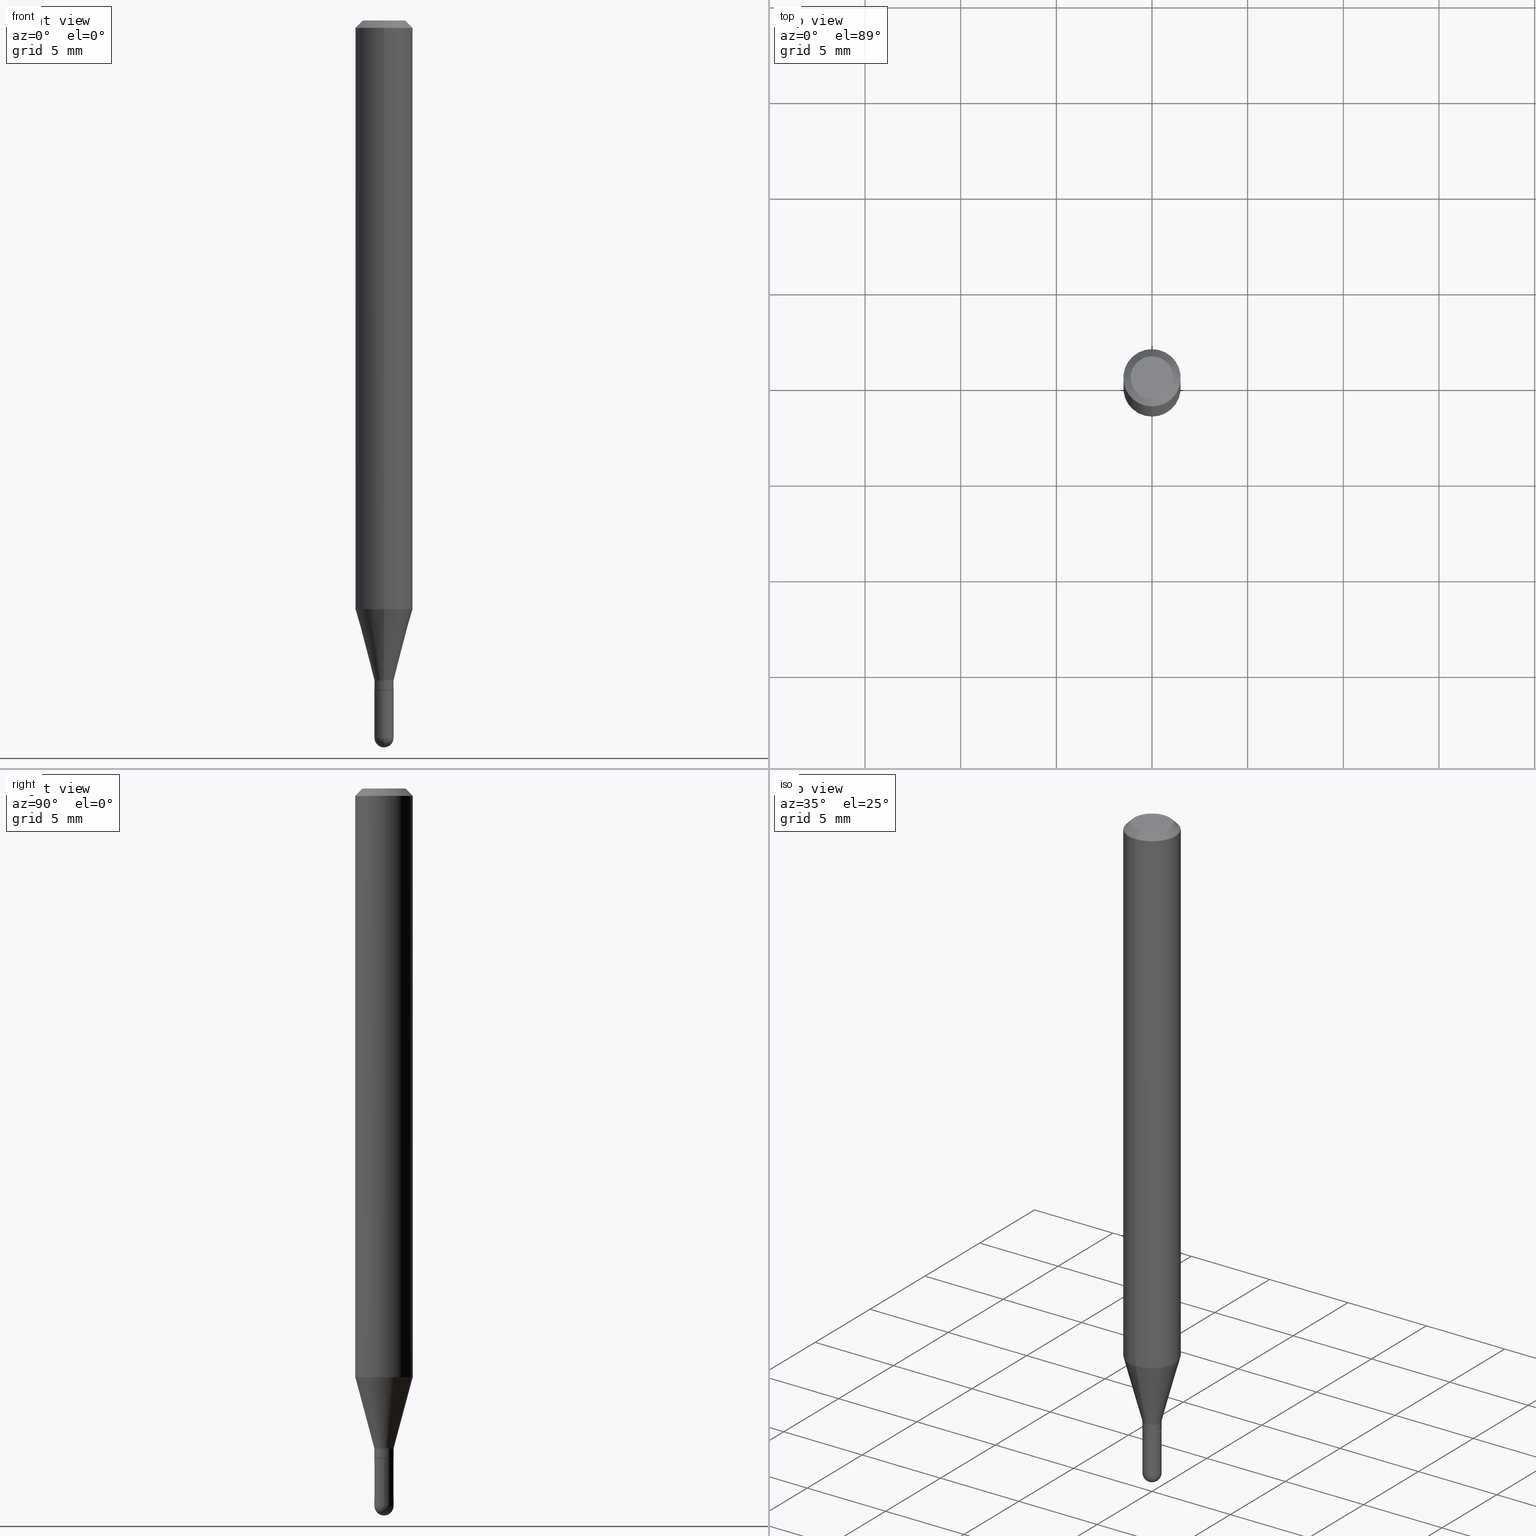
[diagram: canonical four-view strip — front | top / right | iso, engineering-drawing reading convention]
A machine part, canonical four-view strip (front | top / right | iso — engineering-drawing reading convention). The complete STEP part file that produces these views, byte-faithful:
ISO-10303-21;
HEADER;
FILE_DESCRIPTION (( 'STEP AP203' ),
    '1' );
FILE_NAME ('02839.STEP',
    '2024-03-07T21:39:39',
    ( '' ),
    ( '' ),
    'SwSTEP 2.0',
    'SolidWorks 2023',
    '' );
FILE_SCHEMA (( 'CONFIG_CONTROL_DESIGN' ));
ENDSEC;

DATA;
#1 = DIRECTION ( 'NONE',  ( -2.446456800980005402E-29, 3.490066474063722068E-15, 1.000000000000000000 ) ) ;
#2 = ORIENTED_EDGE ( 'NONE', *, *, #327, .T. ) ;
#3 = LINE ( 'NONE', #128, #344 ) ;
#4 = CIRCLE ( 'NONE', #167, 0.01969999999999979406 ) ;
#5 = LOCAL_TIME ( 16, 39, 39.00000000000000000, #69 ) ;
#6 = ORIENTED_EDGE ( 'NONE', *, *, #108, .F. ) ;
#7 = SHAPE_DEFINITION_REPRESENTATION ( #46, #268 ) ;
#8 = APPROVAL ( #230, 'UNSPECIFIED' ) ;
#9 = ADVANCED_FACE ( 'NONE', ( #389 ), #362, .T. ) ;
#10 = DIRECTION ( 'NONE',  ( -2.446456800980005682E-29, 3.490066474063722068E-15, 1.000000000000000000 ) ) ;
#11 = DIRECTION ( 'NONE',  ( -6.982962677686265922E-15, -1.000000000000000000, 3.490066474063722068E-15 ) ) ;
#12 = ADVANCED_FACE ( 'NONE', ( #479 ), #342, .T. ) ;
#13 = CARTESIAN_POINT ( 'NONE',  ( 4.195754854663688780E-16, 0.05904999999999994975, -0.01500000000000055109 ) ) ;
#14 = EDGE_CURVE ( 'NONE', #244, #78, #31, .T. ) ;
#15 = AXIS2_PLACEMENT_3D ( 'NONE', #64, #504, #148 ) ;
#16 = CARTESIAN_POINT ( 'NONE',  ( -4.123439461173739834E-16, -0.05904999999999999832, 2.060884252934627892E-16 ) ) ;
#17 = DIRECTION ( 'NONE',  ( 2.438088387897960049E-29, -3.491481338843145188E-15, -1.000000000000000000 ) ) ;
#18 = EDGE_CURVE ( 'NONE', #305, #244, #330, .T. ) ;
#19 = DIRECTION ( 'NONE',  ( 1.000000000000000000, -6.982962677686275388E-15, 0.000000000000000000 ) ) ;
#20 = CARTESIAN_POINT ( 'NONE',  ( 3.322532981410944760E-29, -4.739859278425939887E-15, -1.358099999999999863 ) ) ;
#21 = CIRCLE ( 'NONE', #37, 0.01969999999999987039 ) ;
#22 = DIMENSIONAL_EXPONENTS ( 1.000000000000000000, 0.000000000000000000, 0.000000000000000000, 0.000000000000000000, 0.000000000000000000, 0.000000000000000000, 0.000000000000000000 ) ;
#23 = CARTESIAN_POINT ( 'NONE',  ( 3.371217471750447444E-29, -4.809311601259809045E-15, -1.377999999999999892 ) ) ;
#24 = APPLICATION_PROTOCOL_DEFINITION ( 'international standard', 'config_control_design', 1994, #270 ) ;
#25 = FACE_OUTER_BOUND ( 'NONE', #392, .T. ) ;
#26 = AXIS2_PLACEMENT_3D ( 'NONE', #510, #314, #475 ) ;
#27 = SECURITY_CLASSIFICATION_LEVEL ( 'unclassified' ) ;
#28 = SPHERICAL_SURFACE ( 'NONE', #255, 0.01970000000000002999 ) ;
#29 = ORIENTED_EDGE ( 'NONE', *, *, #58, .T. ) ;
#30 = APPROVAL_DATE_TIME ( #501, #284 ) ;
#31 = LINE ( 'NONE', #304, #221 ) ;
#32 = ORIENTED_EDGE ( 'NONE', *, *, #18, .F. ) ;
#33 = PERSON_AND_ORGANIZATION ( #99, #438 ) ;
#34 = DIRECTION ( 'NONE',  ( -4.937700262164684515E-15, -0.7071067811865646702, 0.7071067811865303643 ) ) ;
#35 = ORIENTED_EDGE ( 'NONE', *, *, #275, .T. ) ;
#36 = COORDINATED_UNIVERSAL_TIME_OFFSET ( 5, 0, .BEHIND. ) ;
#37 = AXIS2_PLACEMENT_3D ( 'NONE', #333, #126, #84 ) ;
#38 = DIRECTION ( 'NONE',  ( -6.982962677686265133E-15, -1.000000000000000000, 3.490066474063722068E-15 ) ) ;
#39 = ORIENTED_EDGE ( 'NONE', *, *, #14, .T. ) ;
#40 = EDGE_CURVE ( 'NONE', #408, #277, #60, .T. ) ;
#41 = CARTESIAN_POINT ( 'NONE',  ( 1.399769189447714795E-16, 0.01969999999999492296, -1.377499999999999947 ) ) ;
#42 = ORIENTED_EDGE ( 'NONE', *, *, #18, .T. ) ;
#43 = ORIENTED_EDGE ( 'NONE', *, *, #368, .F. ) ;
#44 = FACE_OUTER_BOUND ( 'NONE', #233, .T. ) ;
#45 = ORIENTED_EDGE ( 'NONE', *, *, #246, .T. ) ;
#46 = PRODUCT_DEFINITION_SHAPE ( 'NONE', 'NONE',  #253 ) ;
#47 = CARTESIAN_POINT ( 'NONE',  ( 3.075995059520799729E-16, 0.04404999999999999888, -3.253430260801311543E-16 ) ) ;
#48 = AXIS2_PLACEMENT_3D ( 'NONE', #323, #52, #403 ) ;
#49 = ADVANCED_FACE ( 'NONE', ( #388 ), #144, .T. ) ;
#50 = DIRECTION ( 'NONE',  ( -6.982962677686265922E-15, -1.000000000000000000, 0.000000000000000000 ) ) ;
#51 = VERTEX_POINT ( 'NONE', #81 ) ;
#52 = DIRECTION ( 'NONE',  ( -2.446456800980005402E-29, 3.490066474063722068E-15, 1.000000000000000000 ) ) ;
#53 = APPROVAL ( #382, 'UNSPECIFIED' ) ;
#54 = CARTESIAN_POINT ( 'NONE',  ( 3.571973398368021242E-29, -5.347753800306791438E-15, -1.496099999999999985 ) ) ;
#55 = AXIS2_PLACEMENT_3D ( 'NONE', #287, #481, #164 ) ;
#56 = DIRECTION ( 'NONE',  ( -1.000000000000000000, 7.105427357601001070E-15, -4.926315508542082329E-29 ) ) ;
#57 = DIRECTION ( 'NONE',  ( -6.982962677686265922E-15, -1.000000000000000000, 0.000000000000000000 ) ) ;
#58 = EDGE_CURVE ( 'NONE', #507, #305, #133, .T. ) ;
#59 = FACE_OUTER_BOUND ( 'NONE', #110, .T. ) ;
#60 = CIRCLE ( 'NONE', #478, 0.05904999999999999832 ) ;
#61 = AXIS2_PLACEMENT_3D ( 'NONE', #290, #1, #134 ) ;
#62 = DIRECTION ( 'NONE',  ( -2.446456800980005402E-29, 3.490066474063722068E-15, 1.000000000000000000 ) ) ;
#63 = EDGE_CURVE ( 'NONE', #507, #472, #73, .T. ) ;
#64 = CARTESIAN_POINT ( 'NONE',  ( 0.000000000000000000, 0.000000000000000000, 0.000000000000000000 ) ) ;
#65 = DIRECTION ( 'NONE',  ( -2.446456800980005402E-29, 3.490066474063722068E-15, 1.000000000000000000 ) ) ;
#66 = VERTEX_POINT ( 'NONE', #356 ) ;
#67 = APPLICATION_CONTEXT ( 'configuration controlled 3d designs of mechanical parts and assemblies' ) ;
#68 = CIRCLE ( 'NONE', #211, 0.01969999999999979406 ) ;
#69 = COORDINATED_UNIVERSAL_TIME_OFFSET ( 5, 0, .BEHIND. ) ;
#70 = DIRECTION ( 'NONE',  ( -2.445468806185136597E-29, 3.491481338843145583E-15, 1.000000000000000000 ) ) ;
#71 = ORIENTED_EDGE ( 'NONE', *, *, #497, .F. ) ;
#72 =( NAMED_UNIT ( * ) SI_UNIT ( $, .STERADIAN. ) SOLID_ANGLE_UNIT ( ) );
#73 = LINE ( 'NONE', #471, #79 ) ;
#74 = EDGE_LOOP ( 'NONE', ( #106, #357, #229, #321 ) ) ;
#75 = CC_DESIGN_PERSON_AND_ORGANIZATION_ASSIGNMENT ( #217, #184, ( #253 ) ) ;
#76 = COORDINATED_UNIVERSAL_TIME_OFFSET ( 5, 0, .BEHIND. ) ;
#77 = DIRECTION ( 'NONE',  ( -1.807323732225331323E-15, -0.2588190451025183525, 0.9659258262890689783 ) ) ;
#78 = VERTEX_POINT ( 'NONE', #466 ) ;
#79 = VECTOR ( 'NONE', #385, 39.37007874015748143 ) ;
#80 = AXIS2_PLACEMENT_3D ( 'NONE', #490, #458, #57 ) ;
#81 = CARTESIAN_POINT ( 'NONE',  ( -3.536586717851222218E-16, -0.04404999999999999888, -1.894737676127414243E-16 ) ) ;
#82 = ORIENTED_EDGE ( 'NONE', *, *, #483, .F. ) ;
#83 = ORIENTED_EDGE ( 'NONE', *, *, #178, .F. ) ;
#84 = DIRECTION ( 'NONE',  ( 1.000000000000000000, -6.982962677686275388E-15, 0.000000000000000000 ) ) ;
#85 = ADVANCED_FACE ( 'NONE', ( #25 ), #28, .T. ) ;
#86 = DIRECTION ( 'NONE',  ( -2.445468806185136597E-29, 3.491481338843145583E-15, 1.000000000000000000 ) ) ;
#87 = ORIENTED_EDGE ( 'NONE', *, *, #246, .F. ) ;
#88 = ADVANCED_FACE ( 'NONE', ( #343 ), #114, .T. ) ;
#89 = AXIS2_PLACEMENT_3D ( 'NONE', #428, #312, #117 ) ;
#90 = DIRECTION ( 'NONE',  ( -2.446456800980005402E-29, 3.490066474063722068E-15, 1.000000000000000000 ) ) ;
#91 = VERTEX_POINT ( 'NONE', #496 ) ;
#92 = EDGE_CURVE ( 'NONE', #207, #404, #181, .T. ) ;
#93 = DIRECTION ( 'NONE',  ( -2.446456800980005402E-29, 3.490066474063722068E-15, 1.000000000000000000 ) ) ;
#94 = CARTESIAN_POINT ( 'NONE',  ( 3.322532981410944760E-29, -4.739859278425939887E-15, -1.358099999999999863 ) ) ;
#95 = DIRECTION ( 'NONE',  ( -7.105427357601000281E-15, -1.000000000000000000, 0.000000000000000000 ) ) ;
#96 = AXIS2_PLACEMENT_3D ( 'NONE', #152, #352, #177 ) ;
#97 = VECTOR ( 'NONE', #369, 39.37007874015748143 ) ;
#98 = CARTESIAN_POINT ( 'NONE',  ( 8.396513641257656738E-45, -1.197829887968316227E-30, -3.432111957952484022E-16 ) ) ;
#99 = PERSON ( 'UNSPECIFIED', 'UNSPECIFIED', 'UNSPECIFIED', ('UNSPECIFIED'), ('UNSPECIFIED'), ('UNSPECIFIED') ) ;
#100 = CARTESIAN_POINT ( 'NONE',  ( 3.322532981410944760E-29, -4.739859278425939887E-15, -1.358099999999999863 ) ) ;
#101 = CARTESIAN_POINT ( 'NONE',  ( 4.195754854663685822E-16, 0.05904999999999575866, -1.211243800722164643 ) ) ;
#102 = AXIS2_PLACEMENT_3D ( 'NONE', #303, #463, #391 ) ;
#103 = CIRCLE ( 'NONE', #331, 0.01969999999999987039 ) ;
#104 = LENGTH_MEASURE_WITH_UNIT ( LENGTH_MEASURE( 0.02539999999999999897 ), #293 );
#105 = LINE ( 'NONE', #228, #234 ) ;
#106 = ORIENTED_EDGE ( 'NONE', *, *, #265, .F. ) ;
#107 = APPROVAL_STATUS ( 'not_yet_approved' ) ;
#108 = EDGE_CURVE ( 'NONE', #51, #408, #276, .T. ) ;
#109 = DIRECTION ( 'NONE',  ( 1.000000000000000000, -6.982962677686265133E-15, 4.876176775795935793E-29 ) ) ;
#110 = EDGE_LOOP ( 'NONE', ( #87, #115, #156, #348 ) ) ;
#111 = CIRCLE ( 'NONE', #89, 0.05904999999999999832 ) ;
#112 = CIRCLE ( 'NONE', #137, 0.05904999999999999832 ) ;
#113 = CALENDAR_DATE ( 2024, 7, 3 ) ;
#114 = CYLINDRICAL_SURFACE ( 'NONE', #308, 0.01969999999999987039 ) ;
#115 = ORIENTED_EDGE ( 'NONE', *, *, #121, .T. ) ;
#116 = DATE_AND_TIME ( #225, #310 ) ;
#117 = DIRECTION ( 'NONE',  ( -6.982962677686265922E-15, -1.000000000000000000, 4.626330217890369336E-15 ) ) ;
#118 = ORIENTED_EDGE ( 'NONE', *, *, #451, .T. ) ;
#119 = CARTESIAN_POINT ( 'NONE',  ( 3.669685201470092461E-31, -5.235099711095702540E-17, -0.01500000000000034292 ) ) ;
#120 = EDGE_LOOP ( 'NONE', ( #6, #153, #259, #198 ) ) ;
#121 = EDGE_CURVE ( 'NONE', #91, #237, #336, .T. ) ;
#122 = ORIENTED_EDGE ( 'NONE', *, *, #145, .T. ) ;
#123 = AXIS2_PLACEMENT_3D ( 'NONE', #20, #379, #174 ) ;
#124 = EDGE_CURVE ( 'NONE', #442, #182, #111, .T. ) ;
#125 = CIRCLE ( 'NONE', #371, 0.05904999999999999832 ) ;
#126 = DIRECTION ( 'NONE',  ( -2.445468806185136597E-29, 3.491481338843145583E-15, 1.000000000000000000 ) ) ;
#127 = EDGE_LOOP ( 'NONE', ( #118, #2, #439, #159 ) ) ;
#128 = CARTESIAN_POINT ( 'NONE',  ( 4.195754854663390985E-16, 0.05904999999999999832, -2.060884252934627892E-16 ) ) ;
#129 = PRODUCT ( '02839', '02839', '', ( #218 ) ) ;
#130 = ORIENTED_EDGE ( 'NONE', *, *, #14, .F. ) ;
#131 = CARTESIAN_POINT ( 'NONE',  ( -1.399769189447036867E-16, -0.01970000000000517171, -1.476399999999999491 ) ) ;
#132 = ORIENTED_EDGE ( 'NONE', *, *, #378, .F. ) ;
#133 = CIRCLE ( 'NONE', #96, 0.01969999999999987039 ) ;
#134 = DIRECTION ( 'NONE',  ( -6.982962677686265133E-15, -1.000000000000000000, 0.000000000000000000 ) ) ;
#135 = CARTESIAN_POINT ( 'NONE',  ( 1.375643647504547378E-16, 0.01969999999999472867, -1.476399999999999491 ) ) ;
#136 = PLANE ( 'NONE',  #407 ) ;
#137 = AXIS2_PLACEMENT_3D ( 'NONE', #247, #252, #254 ) ;
#138 = EDGE_CURVE ( 'NONE', #237, #207, #105, .T. ) ;
#139 = CARTESIAN_POINT ( 'NONE',  ( 0.000000000000000000, 0.000000000000000000, 0.000000000000000000 ) ) ;
#140 = CARTESIAN_POINT ( 'NONE',  ( 3.610490145451734531E-29, -5.154823048668018475E-15, -1.476399999999999491 ) ) ;
#141 = PLANE ( 'NONE',  #494 ) ;
#142 = AXIS2_PLACEMENT_3D ( 'NONE', #47, #204, #365 ) ;
#143 = LOCAL_TIME ( 16, 39, 39.00000000000000000, #422 ) ;
#144 = CYLINDRICAL_SURFACE ( 'NONE', #318, 0.01969999999999987039 ) ;
#145 = EDGE_CURVE ( 'NONE', #404, #182, #188, .T. ) ;
#146 = CALENDAR_DATE ( 2024, 7, 3 ) ;
#147 = ORIENTED_EDGE ( 'NONE', *, *, #40, .F. ) ;
#148 = DIRECTION ( 'NONE',  ( 1.000000000000000000, 0.000000000000000000, 0.000000000000000000 ) ) ;
#149 = CARTESIAN_POINT ( 'NONE',  ( 3.610490145451734531E-29, -5.154823048668018475E-15, -1.476399999999999491 ) ) ;
#150 = ORIENTED_EDGE ( 'NONE', *, *, #194, .F. ) ;
#151 = DATE_AND_TIME ( #113, #5 ) ;
#152 = CARTESIAN_POINT ( 'NONE',  ( 3.610490145451734531E-29, -5.154823048668018475E-15, -1.476399999999999491 ) ) ;
#153 = ORIENTED_EDGE ( 'NONE', *, *, #341, .F. ) ;
#154 = DIRECTION ( 'NONE',  ( 1.000000000000000000, -6.982962677686275388E-15, 0.000000000000000000 ) ) ;
#155 = ORIENTED_EDGE ( 'NONE', *, *, #219, .T. ) ;
#156 = ORIENTED_EDGE ( 'NONE', *, *, #138, .T. ) ;
#157 = MANIFOLD_SOLID_BREP ( 'Body-Move/Copy2[2]', #242 ) ;
#158 = DIRECTION ( 'NONE',  ( 1.000000000000000000, -6.982962677686265922E-15, 4.883557194083112340E-29 ) ) ;
#159 = ORIENTED_EDGE ( 'NONE', *, *, #92, .F. ) ;
#160 = AXIS2_PLACEMENT_3D ( 'NONE', #98, #415, #375 ) ;
#161 = LOCAL_TIME ( 16, 39, 39.00000000000000000, #76 ) ;
#162 = DIRECTION ( 'NONE',  ( 5.024295867788201229E-15, 0.7071067811865695552, 0.7071067811865254793 ) ) ;
#163 = LINE ( 'NONE', #317, #97 ) ;
#164 = DIRECTION ( 'NONE',  ( -6.982962677686265133E-15, -1.000000000000000000, 3.490066474063722068E-15 ) ) ;
#165 = ADVANCED_FACE ( 'NONE', ( #232 ), #394, .T. ) ;
#166 = DIRECTION ( 'NONE',  ( 1.000000000000000000, -6.982962677686275388E-15, 0.000000000000000000 ) ) ;
#167 = AXIS2_PLACEMENT_3D ( 'NONE', #94, #206, #443 ) ;
#168 = MANIFOLD_SOLID_BREP ( 'Body-Move/Copy2[1]', #278 ) ;
#169 = DIRECTION ( 'NONE',  ( 2.446456800980005402E-29, -3.490066474063722068E-15, -1.000000000000000000 ) ) ;
#170 = CARTESIAN_POINT ( 'NONE',  ( 0.01969999999999987039, -5.120606531547354639E-15, -1.476399999999999491 ) ) ;
#171 = DIRECTION ( 'NONE',  ( -6.982962677686265922E-15, -1.000000000000000000, 3.490066474063722068E-15 ) ) ;
#172 = CIRCLE ( 'NONE', #470, 0.01970000000000002999 ) ;
#173 = DIRECTION ( 'NONE',  ( 6.982962677686265922E-15, 1.000000000000000000, -3.505890868245046092E-15 ) ) ;
#174 = DIRECTION ( 'NONE',  ( -6.982962677686265133E-15, -1.000000000000000000, 0.000000000000000000 ) ) ;
#175 = LINE ( 'NONE', #412, #235 ) ;
#176 = APPROVAL_ROLE ( '' ) ;
#177 = DIRECTION ( 'NONE',  ( 1.000000000000000000, -6.982962677686275388E-15, 0.000000000000000000 ) ) ;
#178 = EDGE_CURVE ( 'NONE', #237, #91, #460, .T. ) ;
#179 = AXIS2_PLACEMENT_3D ( 'NONE', #340, #457, #213 ) ;
#180 = PERSON_AND_ORGANIZATION ( #99, #438 ) ;
#181 = LINE ( 'NONE', #349, #423 ) ;
#182 = VERTEX_POINT ( 'NONE', #434 ) ;
#183 = ADVANCED_FACE ( 'NONE', ( #420 ), #367, .T. ) ;
#184 = PERSON_AND_ORGANIZATION_ROLE ( 'creator' ) ;
#185 = CARTESIAN_POINT ( 'NONE',  ( 0.000000000000000000, 0.000000000000000000, 0.000000000000000000 ) ) ;
#186 = VERTEX_POINT ( 'NONE', #131 ) ;
#187 = PERSON_AND_ORGANIZATION_ROLE ( 'creator' ) ;
#188 = LINE ( 'NONE', #273, #395 ) ;
#189 = ADVANCED_FACE ( 'NONE', ( #209 ), #399, .T. ) ;
#190 = ORIENTED_EDGE ( 'NONE', *, *, #219, .F. ) ;
#191 = AXIS2_PLACEMENT_3D ( 'NONE', #149, #70, #154 ) ;
#192 = CALENDAR_DATE ( 2024, 7, 3 ) ;
#193 = DIRECTION ( 'NONE',  ( -2.445468806185136597E-29, 3.491481338843145583E-15, 1.000000000000000000 ) ) ;
#194 = EDGE_CURVE ( 'NONE', #227, #277, #163, .T. ) ;
#195 = ORIENTED_EDGE ( 'NONE', *, *, #368, .T. ) ;
#196 = DIRECTION ( 'NONE',  ( -2.446456800980005402E-29, 3.490066474063722068E-15, 1.000000000000000000 ) ) ;
#197 = ORIENTED_EDGE ( 'NONE', *, *, #124, .F. ) ;
#198 = ORIENTED_EDGE ( 'NONE', *, *, #296, .T. ) ;
#199 = DESIGN_CONTEXT ( 'detailed design', #67, 'design' ) ;
#200 = CARTESIAN_POINT ( 'NONE',  ( 8.396513641257656738E-45, -1.197829887968316227E-30, -3.432111957952484022E-16 ) ) ;
#201 = ORIENTED_EDGE ( 'NONE', *, *, #108, .T. ) ;
#202 = AXIS2_PLACEMENT_3D ( 'NONE', #406, #366, #298 ) ;
#203 = CIRCLE ( 'NONE', #249, 0.01970000000000002999 ) ;
#204 = DIRECTION ( 'NONE',  ( 2.446456800980005121E-29, -3.490066474063722068E-15, -1.000000000000000000 ) ) ;
#205 = CC_DESIGN_PERSON_AND_ORGANIZATION_ASSIGNMENT ( #33, #187, ( #355 ) ) ;
#206 = DIRECTION ( 'NONE',  ( -2.446456800980005402E-29, 3.490066474063722068E-15, 1.000000000000000000 ) ) ;
#207 = VERTEX_POINT ( 'NONE', #283 ) ;
#208 = EDGE_CURVE ( 'NONE', #313, #207, #300, .T. ) ;
#209 = FACE_OUTER_BOUND ( 'NONE', #324, .T. ) ;
#210 = CYLINDRICAL_SURFACE ( 'NONE', #461, 0.05904999999999999832 ) ;
#211 = AXIS2_PLACEMENT_3D ( 'NONE', #100, #214, #417 ) ;
#212 = APPROVAL_PERSON_ORGANIZATION ( #390, #53, #176 ) ;
#213 = DIRECTION ( 'NONE',  ( -6.982962677686265133E-15, -1.000000000000000000, 0.000000000000000000 ) ) ;
#214 = DIRECTION ( 'NONE',  ( -2.446456800980005402E-29, 3.490066474063722068E-15, 1.000000000000000000 ) ) ;
#215 = CARTESIAN_POINT ( 'NONE',  ( 3.669685201470092461E-31, -5.235099711095702540E-17, -0.01500000000000034292 ) ) ;
#216 = CARTESIAN_POINT ( 'NONE',  ( 3.610490145451734531E-29, -5.154823048668018475E-15, -1.476399999999999491 ) ) ;
#217 = PERSON_AND_ORGANIZATION ( #99, #438 ) ;
#218 = MECHANICAL_CONTEXT ( 'NONE', #270, 'mechanical' ) ;
#219 = EDGE_CURVE ( 'NONE', #386, #305, #203, .T. ) ;
#220 = CARTESIAN_POINT ( 'NONE',  ( 0.000000000000000000, 0.000000000000000000, 0.000000000000000000 ) ) ;
#221 = VECTOR ( 'NONE', #506, 39.37007874015748143 ) ;
#222 = ORIENTED_EDGE ( 'NONE', *, *, #483, .T. ) ;
#223 = AXIS2_PLACEMENT_3D ( 'NONE', #216, #299, #19 ) ;
#224 = ADVANCED_FACE ( 'NONE', ( #44 ), #319, .T. ) ;
#225 = CALENDAR_DATE ( 2024, 7, 3 ) ;
#226 = DIRECTION ( 'NONE',  ( -2.446456800980005402E-29, 3.490066474063722068E-15, 1.000000000000000000 ) ) ;
#227 = VERTEX_POINT ( 'NONE', #452 ) ;
#228 = CARTESIAN_POINT ( 'NONE',  ( -1.340728834115416699E-16, -0.01920000000000467513, -1.377999999999999892 ) ) ;
#229 = ORIENTED_EDGE ( 'NONE', *, *, #378, .T. ) ;
#230 = APPROVAL_STATUS ( 'not_yet_approved' ) ;
#231 = CC_DESIGN_PERSON_AND_ORGANIZATION_ASSIGNMENT ( #387, #498, ( #129 ) ) ;
#232 = FACE_OUTER_BOUND ( 'NONE', #127, .T. ) ;
#233 = EDGE_LOOP ( 'NONE', ( #396, #45, #468, #401 ) ) ;
#234 = VECTOR ( 'NONE', #34, 39.37007874015748143 ) ;
#235 = VECTOR ( 'NONE', #339, 39.37007874015748854 ) ;
#236 = DIRECTION ( 'NONE',  ( -1.000000000000000000, 6.982962677686265922E-15, -4.883557194083112340E-29 ) ) ;
#237 = VERTEX_POINT ( 'NONE', #446 ) ;
#238 = ORIENTED_EDGE ( 'NONE', *, *, #275, .F. ) ;
#239 = FACE_OUTER_BOUND ( 'NONE', #360, .T. ) ;
#240 = CARTESIAN_POINT ( 'NONE',  ( -0.01969999999999987039, -4.843065247852196904E-15, -1.476399999999999491 ) ) ;
#241 = EDGE_LOOP ( 'NONE', ( #42, #39, #429, #282, #29 ) ) ;
#242 = CLOSED_SHELL ( 'NONE', ( #165, #224, #464, #381, #251, #12, #183, #444, #329, #373, #431, #189 ) ) ;
#243 = DIRECTION ( 'NONE',  ( -2.446456800980005402E-29, 3.490066474063722068E-15, 1.000000000000000000 ) ) ;
#244 = VERTEX_POINT ( 'NONE', #240 ) ;
#245 = DIRECTION ( 'NONE',  ( -6.982962677686265922E-15, -1.000000000000000000, 3.505890868245046092E-15 ) ) ;
#246 = EDGE_CURVE ( 'NONE', #91, #313, #441, .T. ) ;
#247 = CARTESIAN_POINT ( 'NONE',  ( 2.963255633921609456E-29, -4.227321380817945395E-15, -1.211243800722164421 ) ) ;
#248 = CARTESIAN_POINT ( 'NONE',  ( 3.669685201470092461E-31, -5.235099711095702540E-17, -0.01500000000000034292 ) ) ;
#249 = AXIS2_PLACEMENT_3D ( 'NONE', #289, #158, #450 ) ;
#250 = DIRECTION ( 'NONE',  ( -2.446456800980005121E-29, 3.490066474063722068E-15, 1.000000000000000000 ) ) ;
#251 = ADVANCED_FACE ( 'NONE', ( #486 ), #384, .T. ) ;
#252 = DIRECTION ( 'NONE',  ( -2.446456800980005402E-29, 3.490066474063722068E-15, 1.000000000000000000 ) ) ;
#253 = PRODUCT_DEFINITION ( 'UNKNOWN', '', #355, #199 ) ;
#254 = DIRECTION ( 'NONE',  ( -6.982962677686265922E-15, -1.000000000000000000, 4.626330217890369336E-15 ) ) ;
#255 = AXIS2_PLACEMENT_3D ( 'NONE', #432, #236, #425 ) ;
#256 = AXIS2_PLACEMENT_3D ( 'NONE', #200, #93, #409 ) ;
#257 = EDGE_CURVE ( 'NONE', #51, #227, #279, .T. ) ;
#258 = CARTESIAN_POINT ( 'NONE',  ( 0.000000000000000000, 0.000000000000000000, 0.000000000000000000 ) ) ;
#259 = ORIENTED_EDGE ( 'NONE', *, *, #194, .T. ) ;
#260 = APPLICATION_PROTOCOL_DEFINITION ( 'international standard', 'config_control_design', 1994, #67 ) ;
#261 = DIRECTION ( 'NONE',  ( -2.446456800980005682E-29, 3.490066474063722068E-15, 1.000000000000000000 ) ) ;
#262 = ORIENTED_EDGE ( 'NONE', *, *, #257, .T. ) ;
#263 = AXIS2_PLACEMENT_3D ( 'NONE', #248, #169, #291 ) ;
#264 = CC_DESIGN_APPROVAL ( #8, ( #448 ) ) ;
#265 = EDGE_CURVE ( 'NONE', #442, #277, #3, .T. ) ;
#266 = APPROVAL_DATE_TIME ( #151, #53 ) ;
#267 = DIRECTION ( 'NONE',  ( -4.851104656540964275E-15, -0.7071067811865500152, -0.7071067811865450192 ) ) ;
#268 = ADVANCED_BREP_SHAPE_REPRESENTATION ( '02839', ( #168, #157, #15 ), #376 ) ;
#269 = ORIENTED_EDGE ( 'NONE', *, *, #265, .T. ) ;
#270 = APPLICATION_CONTEXT ( 'configuration controlled 3d designs of mechanical parts and assemblies' ) ;
#271 = CC_DESIGN_PERSON_AND_ORGANIZATION_ASSIGNMENT ( #180, #311, ( #448 ) ) ;
#272 = DATE_TIME_ROLE ( 'classification_date' ) ;
#273 = CARTESIAN_POINT ( 'NONE',  ( -1.375643647503847757E-16, -0.01970000000000452986, -1.358099999999999863 ) ) ;
#274 = ORIENTED_EDGE ( 'NONE', *, *, #467, .F. ) ;
#275 = EDGE_CURVE ( 'NONE', #78, #472, #21, .T. ) ;
#276 = LINE ( 'NONE', #502, #435 ) ;
#277 = VERTEX_POINT ( 'NONE', #13 ) ;
#278 = CLOSED_SHELL ( 'NONE', ( #88, #85, #493, #9, #49 ) ) ;
#279 = CIRCLE ( 'NONE', #256, 0.04404999999999999888 ) ;
#280 = ORIENTED_EDGE ( 'NONE', *, *, #92, .T. ) ;
#281 = DIRECTION ( 'NONE',  ( -2.446456800980005682E-29, 3.490066474063722068E-15, 1.000000000000000000 ) ) ;
#282 = ORIENTED_EDGE ( 'NONE', *, *, #63, .F. ) ;
#283 = CARTESIAN_POINT ( 'NONE',  ( -1.375643647503847510E-16, -0.01970000000000466170, -1.377499999999999947 ) ) ;
#284 = APPROVAL ( #107, 'UNSPECIFIED' ) ;
#285 = ORIENTED_EDGE ( 'NONE', *, *, #121, .F. ) ;
#286 = EDGE_CURVE ( 'NONE', #66, #404, #4, .T. ) ;
#287 = CARTESIAN_POINT ( 'NONE',  ( 0.000000000000000000, 0.000000000000000000, 0.000000000000000000 ) ) ;
#288 = CONICAL_SURFACE ( 'NONE', #80, 0.01919999999999986648, 0.7853981633974760346 ) ;
#289 = CARTESIAN_POINT ( 'NONE',  ( 3.522955324091332900E-29, -5.280177895028742273E-15, -1.476399999999999935 ) ) ;
#290 = CARTESIAN_POINT ( 'NONE',  ( 3.369994243349957272E-29, -4.807566568022776907E-15, -1.377499999999999947 ) ) ;
#291 = DIRECTION ( 'NONE',  ( 6.982962677686265922E-15, 1.000000000000000000, -3.505890868245046092E-15 ) ) ;
#292 = CONICAL_SURFACE ( 'NONE', #437, 0.05904999999999999832, 0.7853981633974483900 ) ;
#293 =( LENGTH_UNIT ( ) NAMED_UNIT ( * ) SI_UNIT ( $, .METRE. ) );
#294 = CARTESIAN_POINT ( 'NONE',  ( -1.375643647503847757E-16, -0.01970000000000452986, -1.358099999999999863 ) ) ;
#295 = EDGE_CURVE ( 'NONE', #472, #78, #103, .T. ) ;
#296 = EDGE_CURVE ( 'NONE', #277, #408, #125, .T. ) ;
#297 = FACE_OUTER_BOUND ( 'NONE', #120, .T. ) ;
#298 = DIRECTION ( 'NONE',  ( 6.982962677686265922E-15, 1.000000000000000000, 0.000000000000000000 ) ) ;
#299 = DIRECTION ( 'NONE',  ( -2.445468806185136597E-29, 3.491481338843145583E-15, 1.000000000000000000 ) ) ;
#300 = CIRCLE ( 'NONE', #61, 0.01969999999999979406 ) ;
#301 = LOCAL_TIME ( 16, 39, 39.00000000000000000, #36 ) ;
#302 = CC_DESIGN_DATE_AND_TIME_ASSIGNMENT ( #116, #272, ( #448 ) ) ;
#303 = CARTESIAN_POINT ( 'NONE',  ( 3.371217471750447444E-29, -4.809311601259809045E-15, -1.377999999999999892 ) ) ;
#304 = CARTESIAN_POINT ( 'NONE',  ( -0.01969999999999987039, 1.399769189447388157E-16, -9.690302127802099443E-31 ) ) ;
#305 = VERTEX_POINT ( 'NONE', #135 ) ;
#306 = DATE_TIME_ROLE ( 'creation_date' ) ;
#307 = DIRECTION ( 'NONE',  ( -2.445468806185136597E-29, 3.491481338843145583E-15, 1.000000000000000000 ) ) ;
#308 = AXIS2_PLACEMENT_3D ( 'NONE', #185, #193, #109 ) ;
#309 = EDGE_LOOP ( 'NONE', ( #82, #477, #122, #197 ) ) ;
#310 = LOCAL_TIME ( 16, 39, 39.00000000000000000, #473 ) ;
#311 = PERSON_AND_ORGANIZATION_ROLE ( 'classification_officer' ) ;
#312 = DIRECTION ( 'NONE',  ( -2.446456800980005402E-29, 3.490066474063722068E-15, 1.000000000000000000 ) ) ;
#313 = VERTEX_POINT ( 'NONE', #41 ) ;
#314 = DIRECTION ( 'NONE',  ( -2.446456800980005402E-29, 3.490066474063722068E-15, 1.000000000000000000 ) ) ;
#315 = ORIENTED_EDGE ( 'NONE', *, *, #327, .F. ) ;
#316 = EDGE_LOOP ( 'NONE', ( #71, #155, #402, #43 ) ) ;
#317 = CARTESIAN_POINT ( 'NONE',  ( 4.123439461173743285E-16, 0.05904999999999994975, -0.01500000000000055109 ) ) ;
#318 = AXIS2_PLACEMENT_3D ( 'NONE', #220, #307, #347 ) ;
#319 = CONICAL_SURFACE ( 'NONE', #416, 0.01919999999999986648, 0.7853981633974760346 ) ;
#320 = AXIS2_PLACEMENT_3D ( 'NONE', #485, #90, #11 ) ;
#321 = ORIENTED_EDGE ( 'NONE', *, *, #296, .F. ) ;
#322 = CC_DESIGN_PERSON_AND_ORGANIZATION_ASSIGNMENT ( #495, #350, ( #355 ) ) ;
#323 = CARTESIAN_POINT ( 'NONE',  ( 3.322532981410944760E-29, -4.739859278425939887E-15, -1.358099999999999863 ) ) ;
#324 = EDGE_LOOP ( 'NONE', ( #315, #445, #280, #511 ) ) ;
#325 = CARTESIAN_POINT ( 'NONE',  ( 3.371217471750447444E-29, -4.809311601259809045E-15, -1.377999999999999892 ) ) ;
#326 = EDGE_LOOP ( 'NONE', ( #364, #269, #147, #132 ) ) ;
#327 = EDGE_CURVE ( 'NONE', #313, #66, #411, .T. ) ;
#328 = PLANE ( 'NONE',  #142 ) ;
#329 = ADVANCED_FACE ( 'NONE', ( #239 ), #328, .F. ) ;
#330 = CIRCLE ( 'NONE', #191, 0.01969999999999987039 ) ;
#331 = AXIS2_PLACEMENT_3D ( 'NONE', #482, #86, #166 ) ;
#332 = APPROVAL_PERSON_ORGANIZATION ( #430, #8, #393 ) ;
#333 = CARTESIAN_POINT ( 'NONE',  ( 3.369856014923117948E-29, -4.811261284925853951E-15, -1.377999999999999892 ) ) ;
#334 = CARTESIAN_POINT ( 'NONE',  ( 1.375643647504522233E-16, 0.01969999999999505827, -1.377999999999999892 ) ) ;
#335 = DIRECTION ( 'NONE',  ( -2.445468806185136597E-29, 3.491481338843145583E-15, 1.000000000000000000 ) ) ;
#336 = CIRCLE ( 'NONE', #102, 0.01919999999999986648 ) ;
#337 = CIRCLE ( 'NONE', #223, 0.01969999999999987039 ) ;
#338 = CARTESIAN_POINT ( 'NONE',  ( -4.123439461173736383E-16, -0.05905000000000005383, -0.01500000000000013649 ) ) ;
#339 = DIRECTION ( 'NONE',  ( 1.839019923739601499E-15, 0.2588190451025251249, 0.9659258262890670910 ) ) ;
#340 = CARTESIAN_POINT ( 'NONE',  ( 3.369994243349957272E-29, -4.807566568022776907E-15, -1.377499999999999947 ) ) ;
#341 = EDGE_CURVE ( 'NONE', #227, #51, #354, .T. ) ;
#342 = CONICAL_SURFACE ( 'NONE', #123, 0.01969999999999979406, 0.2617993877991504625 ) ;
#343 = FACE_OUTER_BOUND ( 'NONE', #241, .T. ) ;
#344 = VECTOR ( 'NONE', #10, 39.37007874015748143 ) ;
#345 = CC_DESIGN_SECURITY_CLASSIFICATION ( #448, ( #355 ) ) ;
#346 = PERSON_AND_ORGANIZATION ( #99, #438 ) ;
#347 = DIRECTION ( 'NONE',  ( 1.000000000000000000, -6.982962677686265133E-15, 4.876176775795935793E-29 ) ) ;
#348 = ORIENTED_EDGE ( 'NONE', *, *, #208, .F. ) ;
#349 = CARTESIAN_POINT ( 'NONE',  ( -1.375643647504179818E-16, -0.01969999999999979406, 6.875430953905460381E-17 ) ) ;
#350 = PERSON_AND_ORGANIZATION_ROLE ( 'design_supplier' ) ;
#351 = EDGE_CURVE ( 'NONE', #244, #186, #455, .T. ) ;
#352 = DIRECTION ( 'NONE',  ( -2.445468806185136597E-29, 3.491481338843145583E-15, 1.000000000000000000 ) ) ;
#353 = EDGE_LOOP ( 'NONE', ( #83, #285 ) ) ;
#354 = CIRCLE ( 'NONE', #160, 0.04404999999999999888 ) ;
#355 = PRODUCT_DEFINITION_FORMATION_WITH_SPECIFIED_SOURCE ( 'ANY', '', #129, .NOT_KNOWN. ) ;
#356 = CARTESIAN_POINT ( 'NONE',  ( 2.797762022055701664E-16, 0.01969999999999505480, -1.358099999999999863 ) ) ;
#357 = ORIENTED_EDGE ( 'NONE', *, *, #124, .T. ) ;
#358 = CARTESIAN_POINT ( 'NONE',  ( 1.399769189447382241E-16, 0.01969999999999979406, -6.875430953905460381E-17 ) ) ;
#359 = ORIENTED_EDGE ( 'NONE', *, *, #295, .T. ) ;
#360 = EDGE_LOOP ( 'NONE', ( #449, #262 ) ) ;
#361 = CARTESIAN_POINT ( 'NONE',  ( 1.364242052659719861E-16, 0.01919999999999505783, -1.377999999999999892 ) ) ;
#362 = SPHERICAL_SURFACE ( 'NONE', #202, 0.01970000000000002999 ) ;
#363 = VECTOR ( 'NONE', #162, 39.37007874015748143 ) ;
#364 = ORIENTED_EDGE ( 'NONE', *, *, #467, .T. ) ;
#365 = DIRECTION ( 'NONE',  ( 6.982962677686265922E-15, 1.000000000000000000, -3.490066474063722068E-15 ) ) ;
#366 = DIRECTION ( 'NONE',  ( -1.000000000000000000, 6.982962677686265922E-15, -4.883557194083112340E-29 ) ) ;
#367 = CYLINDRICAL_SURFACE ( 'NONE', #320, 0.05904999999999999832 ) ;
#368 = EDGE_CURVE ( 'NONE', #186, #507, #337, .T. ) ;
#369 = DIRECTION ( 'NONE',  ( 4.937700262164548042E-15, 0.7071067811865451302, -0.7071067811865499042 ) ) ;
#370 = AXIS2_PLACEMENT_3D ( 'NONE', #258, #65, #38 ) ;
#371 = AXIS2_PLACEMENT_3D ( 'NONE', #405, #243, #245 ) ;
#372 = FACE_OUTER_BOUND ( 'NONE', #476, .T. ) ;
#373 = ADVANCED_FACE ( 'NONE', ( #489 ), #136, .F. ) ;
#374 = DIRECTION ( 'NONE',  ( -6.982962677686265922E-15, -1.000000000000000000, 3.490066474063722068E-15 ) ) ;
#375 = DIRECTION ( 'NONE',  ( -6.982962677686265133E-15, -1.000000000000000000, 3.490066474063722068E-15 ) ) ;
#376 =( GEOMETRIC_REPRESENTATION_CONTEXT ( 3 ) GLOBAL_UNCERTAINTY_ASSIGNED_CONTEXT ( ( #509 ) ) GLOBAL_UNIT_ASSIGNED_CONTEXT ( ( #508, #427, #72 ) ) REPRESENTATION_CONTEXT ( 'NONE', 'WORKASPACE' ) );
#377 = CARTESIAN_POINT ( 'NONE',  ( 0.01969999999999987039, -4.948825649676273165E-15, -1.377999999999999892 ) ) ;
#378 = EDGE_CURVE ( 'NONE', #182, #408, #462, .T. ) ;
#379 = DIRECTION ( 'NONE',  ( -2.446456800980005402E-29, 3.490066474063722068E-15, 1.000000000000000000 ) ) ;
#380 = FACE_OUTER_BOUND ( 'NONE', #326, .T. ) ;
#381 = ADVANCED_FACE ( 'NONE', ( #380 ), #210, .T. ) ;
#382 = APPROVAL_STATUS ( 'not_yet_approved' ) ;
#383 = APPROVAL_ROLE ( '' ) ;
#384 = CONICAL_SURFACE ( 'NONE', #48, 0.01969999999999979406, 0.2617993877991504625 ) ;
#385 = DIRECTION ( 'NONE',  ( -2.445468806185136877E-29, 3.491481338843145188E-15, 1.000000000000000000 ) ) ;
#386 = VERTEX_POINT ( 'NONE', #54 ) ;
#387 = PERSON_AND_ORGANIZATION ( #99, #438 ) ;
#388 = FACE_OUTER_BOUND ( 'NONE', #465, .T. ) ;
#389 = FACE_OUTER_BOUND ( 'NONE', #316, .T. ) ;
#390 = PERSON_AND_ORGANIZATION ( #99, #438 ) ;
#391 = DIRECTION ( 'NONE',  ( -6.982962677686265922E-15, -1.000000000000000000, 0.000000000000000000 ) ) ;
#392 = EDGE_LOOP ( 'NONE', ( #190, #421, #480, #32 ) ) ;
#393 = APPROVAL_ROLE ( '' ) ;
#394 = CYLINDRICAL_SURFACE ( 'NONE', #370, 0.01969999999999979406 ) ;
#395 = VECTOR ( 'NONE', #77, 39.37007874015748854 ) ;
#396 = ORIENTED_EDGE ( 'NONE', *, *, #178, .T. ) ;
#397 = VECTOR ( 'NONE', #281, 39.37007874015748143 ) ;
#398 = CC_DESIGN_APPROVAL ( #53, ( #355 ) ) ;
#399 = CYLINDRICAL_SURFACE ( 'NONE', #55, 0.01969999999999979406 ) ;
#400 = PRODUCT_RELATED_PRODUCT_CATEGORY ( 'detail', '', ( #129 ) ) ;
#401 = ORIENTED_EDGE ( 'NONE', *, *, #138, .F. ) ;
#402 = ORIENTED_EDGE ( 'NONE', *, *, #58, .F. ) ;
#403 = DIRECTION ( 'NONE',  ( -6.982962677686265133E-15, -1.000000000000000000, 0.000000000000000000 ) ) ;
#404 = VERTEX_POINT ( 'NONE', #294 ) ;
#405 = CARTESIAN_POINT ( 'NONE',  ( 3.669685201470092461E-31, -5.235099711095702540E-17, -0.01500000000000034292 ) ) ;
#406 = CARTESIAN_POINT ( 'NONE',  ( 3.522955324091332900E-29, -5.280177895028742273E-15, -1.476399999999999935 ) ) ;
#407 = AXIS2_PLACEMENT_3D ( 'NONE', #23, #250, #171 ) ;
#408 = VERTEX_POINT ( 'NONE', #338 ) ;
#409 = DIRECTION ( 'NONE',  ( -6.982962677686265133E-15, -1.000000000000000000, 3.490066474063722068E-15 ) ) ;
#410 = EDGE_LOOP ( 'NONE', ( #426, #222, #274, #474 ) ) ;
#411 = LINE ( 'NONE', #358, #397 ) ;
#412 = CARTESIAN_POINT ( 'NONE',  ( 1.399769189447714548E-16, 0.01969999999999505480, -1.358099999999999863 ) ) ;
#413 = DIRECTION ( 'NONE',  ( 2.446456800980005402E-29, -3.490066474063722068E-15, -1.000000000000000000 ) ) ;
#414 = DIRECTION ( 'NONE',  ( -2.446456800980005682E-29, 3.490066474063722068E-15, 1.000000000000000000 ) ) ;
#415 = DIRECTION ( 'NONE',  ( -2.446456800980005402E-29, 3.490066474063722068E-15, 1.000000000000000000 ) ) ;
#416 = AXIS2_PLACEMENT_3D ( 'NONE', #325, #196, #50 ) ;
#417 = DIRECTION ( 'NONE',  ( -6.982962677686265133E-15, -1.000000000000000000, 0.000000000000000000 ) ) ;
#418 = CC_DESIGN_APPROVAL ( #284, ( #253 ) ) ;
#419 = CALENDAR_DATE ( 2024, 7, 3 ) ;
#420 = FACE_OUTER_BOUND ( 'NONE', #74, .T. ) ;
#421 = ORIENTED_EDGE ( 'NONE', *, *, #497, .T. ) ;
#422 = COORDINATED_UNIVERSAL_TIME_OFFSET ( 5, 0, .BEHIND. ) ;
#423 = VECTOR ( 'NONE', #261, 39.37007874015748143 ) ;
#424 = CONICAL_SURFACE ( 'NONE', #263, 0.05904999999999999832, 0.7853981633974483900 ) ;
#425 = DIRECTION ( 'NONE',  ( 6.982962677686265922E-15, 1.000000000000000000, 0.000000000000000000 ) ) ;
#426 = ORIENTED_EDGE ( 'NONE', *, *, #454, .T. ) ;
#427 =( NAMED_UNIT ( * ) PLANE_ANGLE_UNIT ( ) SI_UNIT ( $, .RADIAN. ) );
#428 = CARTESIAN_POINT ( 'NONE',  ( 2.963255633921609456E-29, -4.227321380817945395E-15, -1.211243800722164421 ) ) ;
#429 = ORIENTED_EDGE ( 'NONE', *, *, #295, .F. ) ;
#430 = PERSON_AND_ORGANIZATION ( #99, #438 ) ;
#431 = ADVANCED_FACE ( 'NONE', ( #59 ), #288, .T. ) ;
#432 = CARTESIAN_POINT ( 'NONE',  ( 3.522955324091332900E-29, -5.280177895028742273E-15, -1.476399999999999935 ) ) ;
#433 = ORIENTED_EDGE ( 'NONE', *, *, #351, .T. ) ;
#434 = CARTESIAN_POINT ( 'NONE',  ( -4.123439461173444997E-16, -0.05905000000000424493, -1.211243800722164199 ) ) ;
#435 = VECTOR ( 'NONE', #267, 39.37007874015748143 ) ;
#436 = EDGE_LOOP ( 'NONE', ( #359, #35 ) ) ;
#437 = AXIS2_PLACEMENT_3D ( 'NONE', #215, #413, #173 ) ;
#438 = ORGANIZATION ( 'UNSPECIFIED', 'UNSPECIFIED', '' ) ;
#439 = ORIENTED_EDGE ( 'NONE', *, *, #454, .F. ) ;
#440 = APPROVAL_DATE_TIME ( #512, #8 ) ;
#441 = LINE ( 'NONE', #361, #363 ) ;
#442 = VERTEX_POINT ( 'NONE', #101 ) ;
#443 = DIRECTION ( 'NONE',  ( -6.982962677686265133E-15, -1.000000000000000000, 0.000000000000000000 ) ) ;
#444 = ADVANCED_FACE ( 'NONE', ( #297 ), #292, .T. ) ;
#445 = ORIENTED_EDGE ( 'NONE', *, *, #208, .T. ) ;
#446 = CARTESIAN_POINT ( 'NONE',  ( -1.340728834115416699E-16, -0.01920000000000467513, -1.377999999999999892 ) ) ;
#447 = CIRCLE ( 'NONE', #179, 0.01969999999999979406 ) ;
#448 = SECURITY_CLASSIFICATION ( '', '', #27 ) ;
#449 = ORIENTED_EDGE ( 'NONE', *, *, #341, .T. ) ;
#450 = DIRECTION ( 'NONE',  ( 6.982962677686266711E-15, 1.000000000000000000, 0.000000000000000000 ) ) ;
#451 = EDGE_CURVE ( 'NONE', #207, #313, #447, .T. ) ;
#452 = CARTESIAN_POINT ( 'NONE',  ( 3.599717260347271507E-16, 0.04404999999999999888, -4.969486239777553554E-16 ) ) ;
#453 = CARTESIAN_POINT ( 'NONE',  ( 3.522955324091332900E-29, -5.280177895028742273E-15, -1.476399999999999935 ) ) ;
#454 = EDGE_CURVE ( 'NONE', #404, #66, #68, .T. ) ;
#455 = CIRCLE ( 'NONE', #488, 0.01969999999999987039 ) ;
#456 = APPROVAL_PERSON_ORGANIZATION ( #346, #284, #383 ) ;
#457 = DIRECTION ( 'NONE',  ( -2.446456800980005402E-29, 3.490066474063722068E-15, 1.000000000000000000 ) ) ;
#458 = DIRECTION ( 'NONE',  ( -2.446456800980005402E-29, 3.490066474063722068E-15, 1.000000000000000000 ) ) ;
#459 = FACE_OUTER_BOUND ( 'NONE', #436, .T. ) ;
#460 = CIRCLE ( 'NONE', #26, 0.01919999999999986648 ) ;
#461 = AXIS2_PLACEMENT_3D ( 'NONE', #139, #62, #374 ) ;
#462 = LINE ( 'NONE', #16, #505 ) ;
#463 = DIRECTION ( 'NONE',  ( -2.446456800980005402E-29, 3.490066474063722068E-15, 1.000000000000000000 ) ) ;
#464 = ADVANCED_FACE ( 'NONE', ( #372 ), #424, .T. ) ;
#465 = EDGE_LOOP ( 'NONE', ( #130, #433, #195, #500, #238 ) ) ;
#466 = CARTESIAN_POINT ( 'NONE',  ( -0.01969999999999987039, -4.843065247852196904E-15, -1.377999999999999892 ) ) ;
#467 = EDGE_CURVE ( 'NONE', #182, #442, #112, .T. ) ;
#468 = ORIENTED_EDGE ( 'NONE', *, *, #451, .F. ) ;
#469 = DATE_AND_TIME ( #146, #143 ) ;
#470 = AXIS2_PLACEMENT_3D ( 'NONE', #453, #56, #95 ) ;
#471 = CARTESIAN_POINT ( 'NONE',  ( 0.01969999999999987039, -1.375643647504185241E-16, 9.606068248317930159E-31 ) ) ;
#472 = VERTEX_POINT ( 'NONE', #377 ) ;
#473 = COORDINATED_UNIVERSAL_TIME_OFFSET ( 5, 0, .BEHIND. ) ;
#474 = ORIENTED_EDGE ( 'NONE', *, *, #145, .F. ) ;
#475 = DIRECTION ( 'NONE',  ( -6.982962677686265922E-15, -1.000000000000000000, 0.000000000000000000 ) ) ;
#476 = EDGE_LOOP ( 'NONE', ( #503, #201, #484, #150 ) ) ;
#477 = ORIENTED_EDGE ( 'NONE', *, *, #286, .T. ) ;
#478 = AXIS2_PLACEMENT_3D ( 'NONE', #119, #226, #499 ) ;
#479 = FACE_OUTER_BOUND ( 'NONE', #309, .T. ) ;
#480 = ORIENTED_EDGE ( 'NONE', *, *, #351, .F. ) ;
#481 = DIRECTION ( 'NONE',  ( -2.446456800980005402E-29, 3.490066474063722068E-15, 1.000000000000000000 ) ) ;
#482 = CARTESIAN_POINT ( 'NONE',  ( 3.369856014923117948E-29, -4.811261284925853951E-15, -1.377999999999999892 ) ) ;
#483 = EDGE_CURVE ( 'NONE', #66, #442, #175, .T. ) ;
#484 = ORIENTED_EDGE ( 'NONE', *, *, #40, .T. ) ;
#485 = CARTESIAN_POINT ( 'NONE',  ( 0.000000000000000000, 0.000000000000000000, 0.000000000000000000 ) ) ;
#486 = FACE_OUTER_BOUND ( 'NONE', #410, .T. ) ;
#487 = DIRECTION ( 'NONE',  ( -1.000000000000000000, 6.982962677686265922E-15, -4.876176775795935793E-29 ) ) ;
#488 = AXIS2_PLACEMENT_3D ( 'NONE', #140, #335, #492 ) ;
#489 = FACE_OUTER_BOUND ( 'NONE', #353, .T. ) ;
#490 = CARTESIAN_POINT ( 'NONE',  ( 3.371217471750447444E-29, -4.809311601259809045E-15, -1.377999999999999892 ) ) ;
#491 = CC_DESIGN_DATE_AND_TIME_ASSIGNMENT ( #469, #306, ( #253 ) ) ;
#492 = DIRECTION ( 'NONE',  ( 1.000000000000000000, -6.982962677686275388E-15, 0.000000000000000000 ) ) ;
#493 = ADVANCED_FACE ( 'NONE', ( #459 ), #141, .F. ) ;
#494 = AXIS2_PLACEMENT_3D ( 'NONE', #334, #17, #487 ) ;
#495 = PERSON_AND_ORGANIZATION ( #99, #438 ) ;
#496 = CARTESIAN_POINT ( 'NONE',  ( 1.382005621053719423E-16, 0.01919999999999505783, -1.377999999999999892 ) ) ;
#497 = EDGE_CURVE ( 'NONE', #386, #186, #172, .T. ) ;
#498 = PERSON_AND_ORGANIZATION_ROLE ( 'design_owner' ) ;
#499 = DIRECTION ( 'NONE',  ( -6.982962677686265922E-15, -1.000000000000000000, 3.505890868245046092E-15 ) ) ;
#500 = ORIENTED_EDGE ( 'NONE', *, *, #63, .T. ) ;
#501 = DATE_AND_TIME ( #419, #161 ) ;
#502 = CARTESIAN_POINT ( 'NONE',  ( -4.051124067684085231E-16, -0.05905000000000005383, -0.01500000000000013649 ) ) ;
#503 = ORIENTED_EDGE ( 'NONE', *, *, #257, .F. ) ;
#504 = DIRECTION ( 'NONE',  ( 0.000000000000000000, 0.000000000000000000, 1.000000000000000000 ) ) ;
#505 = VECTOR ( 'NONE', #414, 39.37007874015748143 ) ;
#506 = DIRECTION ( 'NONE',  ( -2.445468806185136877E-29, 3.491481338843145188E-15, 1.000000000000000000 ) ) ;
#507 = VERTEX_POINT ( 'NONE', #170 ) ;
#508 =( CONVERSION_BASED_UNIT ( 'INCH', #104 ) LENGTH_UNIT ( ) NAMED_UNIT ( #22 ) );
#509 = UNCERTAINTY_MEASURE_WITH_UNIT (LENGTH_MEASURE( 1.000000000000000082E-05 ), #508, 'distance_accuracy_value', 'NONE');
#510 = CARTESIAN_POINT ( 'NONE',  ( 3.371217471750447444E-29, -4.809311601259809045E-15, -1.377999999999999892 ) ) ;
#511 = ORIENTED_EDGE ( 'NONE', *, *, #286, .F. ) ;
#512 = DATE_AND_TIME ( #192, #301 ) ;
ENDSEC;
END-ISO-10303-21;
